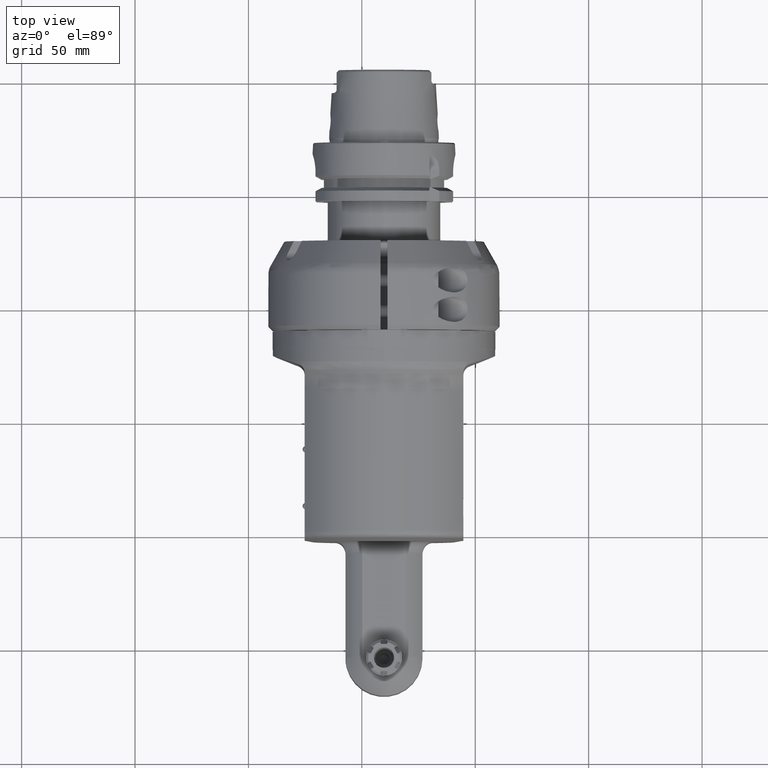
[diagram: clean part render]
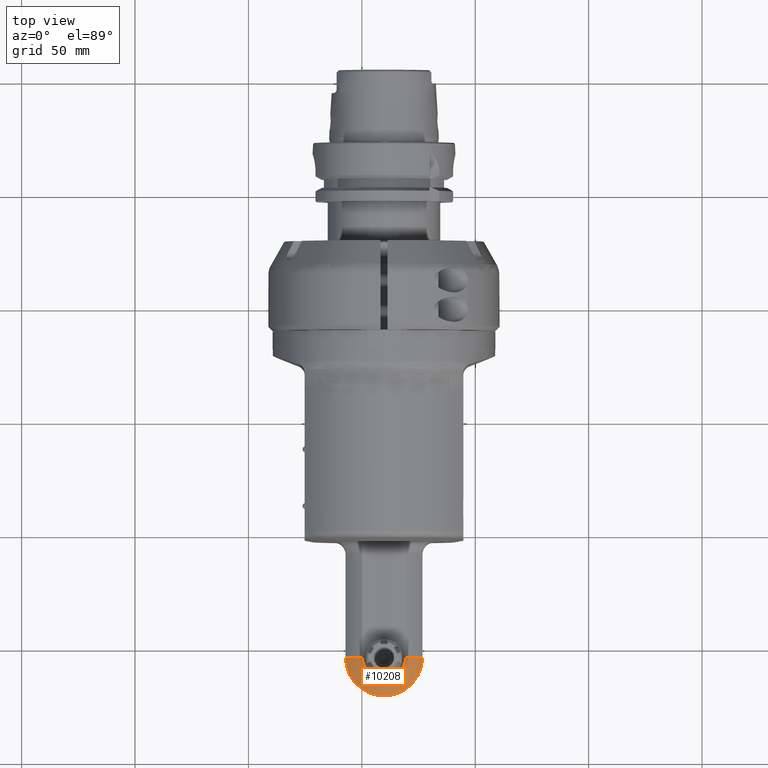
[diagram: same view with one face highlighted and labeled with its STEP entity id]
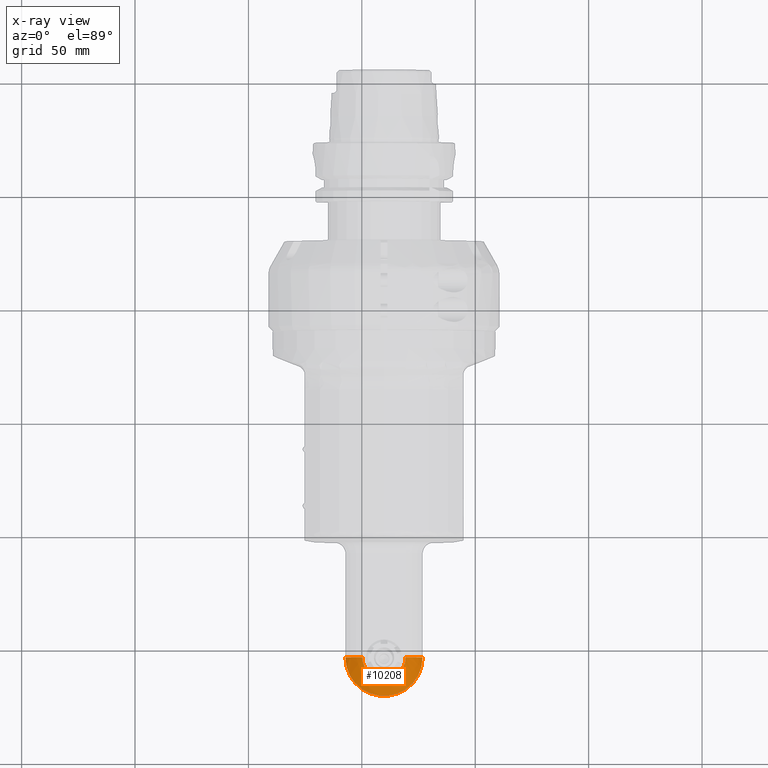
[diagram: x-ray of the same camera — body ghosted, the highlighted face saturated]
A machine part, top view. The second image highlights one B-rep face of the part: STEP entity #10208.
The next image is the same camera in x-ray: the body ghosted, the highlighted face saturated — about 0% of this face is hidden behind the body in this view.
In plain terms, the highlighted spherical surface has radius 21.5 mm.
Its self-contained STEP definition (entity closure, byte-faithful):
#52=SPHERICAL_SURFACE('',#10926,21.5);
#660=CIRCLE('',#10909,21.5);
#665=CIRCLE('',#10924,9.575359001103);
#667=CIRCLE('',#10927,21.5);
#668=CIRCLE('',#10928,17.);
#1303=FACE_OUTER_BOUND('',#1932,.T.);
#1932=EDGE_LOOP('',(#6856,#6857,#6858,#6859));
#4131=VERTEX_POINT('',#15282);
#4132=VERTEX_POINT('',#15284);
#4154=VERTEX_POINT('',#15561);
#4156=VERTEX_POINT('',#15567);
#5187=EDGE_CURVE('',#4132,#4131,#660,.T.);
#5220=EDGE_CURVE('',#4154,#4131,#665,.T.);
#5222=EDGE_CURVE('',#4154,#4156,#667,.T.);
#5223=EDGE_CURVE('',#4156,#4132,#668,.T.);
#6856=ORIENTED_EDGE('',*,*,#5220,.F.);
#6857=ORIENTED_EDGE('',*,*,#5222,.T.);
#6858=ORIENTED_EDGE('',*,*,#5223,.T.);
#6859=ORIENTED_EDGE('',*,*,#5187,.T.);
#10208=ADVANCED_FACE('',(#1303),#52,.T.);
#10909=AXIS2_PLACEMENT_3D('',#15285,#12119,#12120);
#10924=AXIS2_PLACEMENT_3D('',#15563,#12161,#12162);
#10926=AXIS2_PLACEMENT_3D('',#15566,#12165,#12166);
#10927=AXIS2_PLACEMENT_3D('',#15568,#12167,#12168);
#10928=AXIS2_PLACEMENT_3D('',#15569,#12169,#12170);
#12119=DIRECTION('center_axis',(1.,0.,0.));
#12120=DIRECTION('ref_axis',(0.,-0.612206817725014,0.790697674418618));
#12161=DIRECTION('center_axis',(0.,-1.,0.));
#12162=DIRECTION('ref_axis',(2.374570764574E-14,0.,-1.));
#12165=DIRECTION('center_axis',(0.,-0.895348837209307,0.445365534935003));
#12166=DIRECTION('ref_axis',(0.,-0.445365534935003,-0.895348837209307));
#12167=DIRECTION('center_axis',(1.,0.,0.));
#12168=DIRECTION('ref_axis',(0.,-0.895348837209307,-0.445365534935003));
#12169=DIRECTION('center_axis',(0.,-1.,0.));
#12170=DIRECTION('ref_axis',(0.,0.,-1.));
#15282=CARTESIAN_POINT('',(217.9999995,-19.25,9.575359001103));
#15284=CARTESIAN_POINT('',(217.9999995,-13.16244658109,17.));
#15285=CARTESIAN_POINT('Origin',(217.9999995,0.,-2.419667796104E-14));
#15561=CARTESIAN_POINT('',(217.9999995,-19.25,-9.575359001103));
#15563=CARTESIAN_POINT('Origin',(217.9999995,-19.25,-2.13162820728E-14));
#15566=CARTESIAN_POINT('Origin',(217.9999995,0.,-2.419667796104E-14));
#15567=CARTESIAN_POINT('',(217.9999995,-13.16244658109,-17.));
#15568=CARTESIAN_POINT('Origin',(217.9999995,0.,-2.419667796104E-14));
#15569=CARTESIAN_POINT('Origin',(217.9999995,-13.16244658109,2.038554921758E-14));